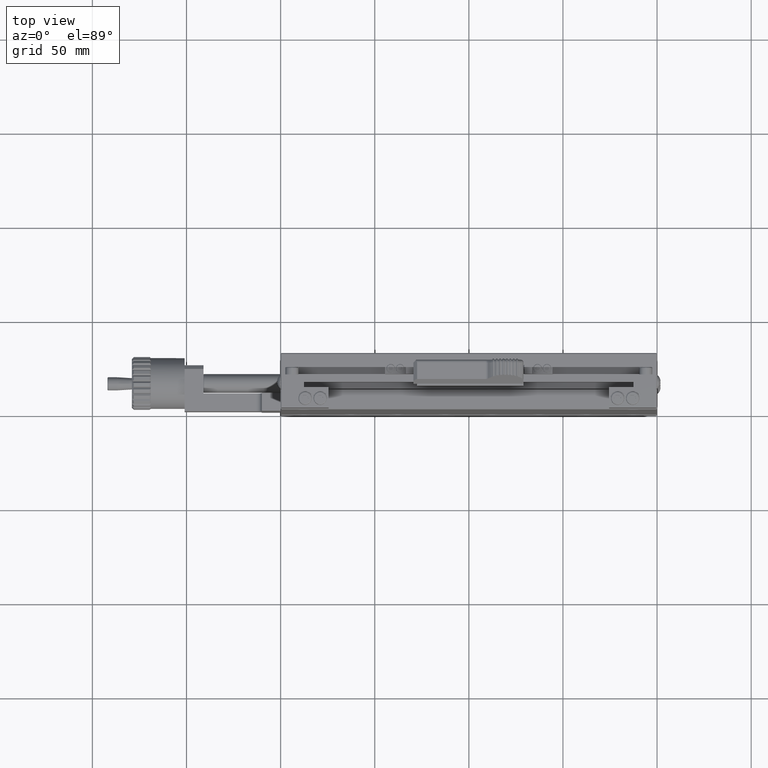
[diagram: clean part render]
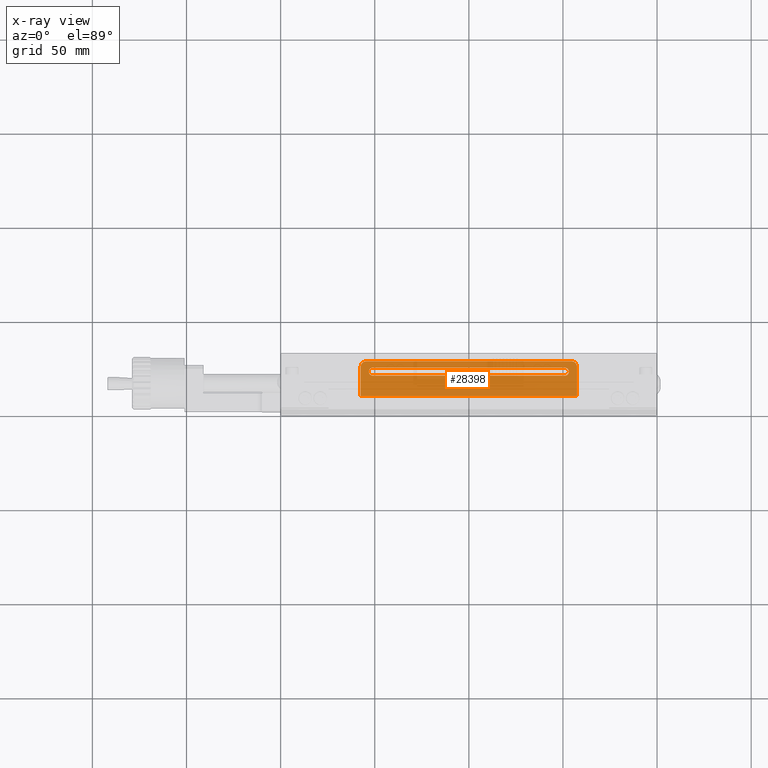
[diagram: x-ray — body ghosted, one internal face saturated and labeled with its STEP entity id]
A machine part, top view, then the same camera in x-ray: the body is ghosted and one INTERNAL B-rep face — a face not visible from any outside direction — is saturated and labeled: STEP entity #28398.
In plain terms, the highlighted planar face has unit normal (0, 0, 1).
Its self-contained STEP definition (entity closure, byte-faithful):
#377 = ORIENTED_EDGE ( 'NONE', *, *, #13184, .T. ) ;
#644 = CARTESIAN_POINT ( 'NONE',  ( -154.5000000000000000, 26.00000000000000355, -100.0000000000000000 ) ) ;
#1204 = DIRECTION ( 'NONE',  ( -1.000000000000000000, -0.000000000000000000, 0.000000000000000000 ) ) ;
#1676 = DIRECTION ( 'NONE',  ( 0.000000000000000000, 0.000000000000000000, 1.000000000000000000 ) ) ;
#4133 = DIRECTION ( 'NONE',  ( -0.000000000000000000, 1.000000000000000000, 0.000000000000000000 ) ) ;
#5482 = EDGE_CURVE ( 'NONE', #14419, #29756, #40237, .T. ) ;
#5702 = FACE_OUTER_BOUND ( 'NONE', #62480, .T. ) ;
#7331 = CARTESIAN_POINT ( 'NONE',  ( -151.0000000000000000, 23.50000000000000000, -100.0000000000000000 ) ) ;
#7411 = CARTESIAN_POINT ( 'NONE',  ( -45.50000000000000000, 29.00000000000000000, -100.0000000000000000 ) ) ;
#8882 = ORIENTED_EDGE ( 'NONE', *, *, #29433, .T. ) ;
#9053 = DIRECTION ( 'NONE',  ( 1.000000000000000000, 0.000000000000000000, 0.000000000000000000 ) ) ;
#9200 = EDGE_CURVE ( 'NONE', #63366, #22633, #56118, .T. ) ;
#10788 = VERTEX_POINT ( 'NONE', #51979 ) ;
#11355 = DIRECTION ( 'NONE',  ( -0.000000000000000000, -0.000000000000000000, -1.000000000000000000 ) ) ;
#11595 = CARTESIAN_POINT ( 'NONE',  ( -154.5000000000000000, 29.00000000000001776, -100.0000000000000000 ) ) ;
#12819 = DIRECTION ( 'NONE',  ( 0.000000000000000000, -1.000000000000000000, -0.000000000000000000 ) ) ;
#13109 = VERTEX_POINT ( 'NONE', #7411 ) ;
#13120 = EDGE_CURVE ( 'NONE', #50360, #18782, #43184, .T. ) ;
#13184 = EDGE_CURVE ( 'NONE', #60562, #50360, #66285, .T. ) ;
#14419 = VERTEX_POINT ( 'NONE', #54871 ) ;
#15545 = VERTEX_POINT ( 'NONE', #58298 ) ;
#17150 = DIRECTION ( 'NONE',  ( 1.000000000000000000, 0.000000000000000000, 0.000000000000000000 ) ) ;
#18755 = EDGE_CURVE ( 'NONE', #22633, #13109, #62313, .T. ) ;
#18782 = VERTEX_POINT ( 'NONE', #61945 ) ;
#19684 = ORIENTED_EDGE ( 'NONE', *, *, #34999, .T. ) ;
#20203 = DIRECTION ( 'NONE',  ( -1.000000000000000000, -0.000000000000000000, 0.000000000000000000 ) ) ;
#20967 = AXIS2_PLACEMENT_3D ( 'NONE', #47921, #1676, #9053 ) ;
#21116 = LINE ( 'NONE', #22457, #52089 ) ;
#21632 = ORIENTED_EDGE ( 'NONE', *, *, #13120, .T. ) ;
#22437 = CARTESIAN_POINT ( 'NONE',  ( -154.5000000000000000, 29.00000000000000000, -100.0000000000000000 ) ) ;
#22457 = CARTESIAN_POINT ( 'NONE',  ( -200.0000000000000000, 10.50000000000000000, -100.0000000000000000 ) ) ;
#22633 = VERTEX_POINT ( 'NONE', #25461 ) ;
#23576 = CARTESIAN_POINT ( 'NONE',  ( -157.5000000000000000, 26.00000000000000355, -100.0000000000000000 ) ) ;
#25461 = CARTESIAN_POINT ( 'NONE',  ( -42.50000000000000711, 26.00000000000000355, -100.0000000000000000 ) ) ;
#25811 = CARTESIAN_POINT ( 'NONE',  ( -45.50000000000000000, 26.00000000000000355, -100.0000000000000000 ) ) ;
#26181 = DIRECTION ( 'NONE',  ( 1.000000000000000000, 0.000000000000000000, 0.000000000000000000 ) ) ;
#26284 = FACE_BOUND ( 'NONE', #63323, .T. ) ;
#27206 = DIRECTION ( 'NONE',  ( 1.000000000000000000, 0.000000000000000000, -0.000000000000000000 ) ) ;
#27918 = DIRECTION ( 'NONE',  ( -0.000000000000000000, -0.000000000000000000, -1.000000000000000000 ) ) ;
#28398 = ADVANCED_FACE ( 'NONE', ( #5702, #26284 ), #46892, .T. ) ;
#28532 = CARTESIAN_POINT ( 'NONE',  ( -154.5000000000000000, 25.64999999999999858, -100.0000000000000000 ) ) ;
#29433 = EDGE_CURVE ( 'NONE', #29756, #15545, #32602, .T. ) ;
#29756 = VERTEX_POINT ( 'NONE', #51132 ) ;
#30328 = LINE ( 'NONE', #40122, #53377 ) ;
#31206 = DIRECTION ( 'NONE',  ( 1.000000000000000000, 0.000000000000000000, 0.000000000000000000 ) ) ;
#32555 = LINE ( 'NONE', #22437, #35124 ) ;
#32602 = LINE ( 'NONE', #28532, #58424 ) ;
#33236 = AXIS2_PLACEMENT_3D ( 'NONE', #25811, #51140, #31206 ) ;
#34838 = CARTESIAN_POINT ( 'NONE',  ( -42.50000000000000711, 26.00000000000000355, -100.0000000000000000 ) ) ;
#34999 = EDGE_CURVE ( 'NONE', #10788, #14419, #30328, .T. ) ;
#35124 = VECTOR ( 'NONE', #62630, 1000.000000000000000 ) ;
#37157 = AXIS2_PLACEMENT_3D ( 'NONE', #47794, #11355, #26181 ) ;
#37565 = VECTOR ( 'NONE', #4133, 1000.000000000000000 ) ;
#40122 = CARTESIAN_POINT ( 'NONE',  ( -154.5000000000000000, 21.35000000000000142, -100.0000000000000000 ) ) ;
#40146 = EDGE_CURVE ( 'NONE', #13109, #60562, #32555, .T. ) ;
#40237 = CIRCLE ( 'NONE', #56441, 2.150000000000012790 ) ;
#41056 = ORIENTED_EDGE ( 'NONE', *, *, #57604, .T. ) ;
#43184 = LINE ( 'NONE', #23576, #47440 ) ;
#43618 = ORIENTED_EDGE ( 'NONE', *, *, #40146, .T. ) ;
#44679 = CIRCLE ( 'NONE', #37157, 2.149999999999999023 ) ;
#45413 = ORIENTED_EDGE ( 'NONE', *, *, #49842, .F. ) ;
#46892 = PLANE ( 'NONE',  #47512 ) ;
#47440 = VECTOR ( 'NONE', #12819, 1000.000000000000000 ) ;
#47512 = AXIS2_PLACEMENT_3D ( 'NONE', #644, #58712, #54640 ) ;
#47794 = CARTESIAN_POINT ( 'NONE',  ( -49.00000000000000000, 23.50000000000000000, -100.0000000000000000 ) ) ;
#47921 = CARTESIAN_POINT ( 'NONE',  ( -154.5000000000000000, 26.00000000000000355, -100.0000000000000000 ) ) ;
#48724 = CARTESIAN_POINT ( 'NONE',  ( -42.50000000000000711, 10.50000000000000000, -100.0000000000000000 ) ) ;
#49842 = EDGE_CURVE ( 'NONE', #63366, #18782, #21116, .T. ) ;
#50360 = VERTEX_POINT ( 'NONE', #52336 ) ;
#51132 = CARTESIAN_POINT ( 'NONE',  ( -151.0000000000000000, 25.64999999999999858, -100.0000000000000000 ) ) ;
#51140 = DIRECTION ( 'NONE',  ( 0.000000000000000000, 0.000000000000000000, 1.000000000000000000 ) ) ;
#51979 = CARTESIAN_POINT ( 'NONE',  ( -49.00000000000000000, 21.35000000000000142, -100.0000000000000000 ) ) ;
#52089 = VECTOR ( 'NONE', #1204, 1000.000000000000000 ) ;
#52336 = CARTESIAN_POINT ( 'NONE',  ( -157.5000000000000000, 26.00000000000000355, -100.0000000000000000 ) ) ;
#53377 = VECTOR ( 'NONE', #20203, 1000.000000000000000 ) ;
#54640 = DIRECTION ( 'NONE',  ( 1.000000000000000000, 0.000000000000000000, -0.000000000000000000 ) ) ;
#54871 = CARTESIAN_POINT ( 'NONE',  ( -151.0000000000000000, 21.35000000000000142, -100.0000000000000000 ) ) ;
#56118 = LINE ( 'NONE', #34838, #37565 ) ;
#56441 = AXIS2_PLACEMENT_3D ( 'NONE', #7331, #27918, #17150 ) ;
#57604 = EDGE_CURVE ( 'NONE', #15545, #10788, #44679, .T. ) ;
#58298 = CARTESIAN_POINT ( 'NONE',  ( -49.00000000000000000, 25.64999999999999858, -100.0000000000000000 ) ) ;
#58424 = VECTOR ( 'NONE', #27206, 1000.000000000000000 ) ;
#58712 = DIRECTION ( 'NONE',  ( 0.000000000000000000, 0.000000000000000000, 1.000000000000000000 ) ) ;
#59510 = ORIENTED_EDGE ( 'NONE', *, *, #18755, .T. ) ;
#59666 = ORIENTED_EDGE ( 'NONE', *, *, #5482, .T. ) ;
#60562 = VERTEX_POINT ( 'NONE', #11595 ) ;
#61945 = CARTESIAN_POINT ( 'NONE',  ( -157.5000000000000000, 10.50000000000000000, -100.0000000000000000 ) ) ;
#62313 = CIRCLE ( 'NONE', #33236, 3.000000000000002665 ) ;
#62480 = EDGE_LOOP ( 'NONE', ( #43618, #377, #21632, #45413, #64663, #59510 ) ) ;
#62630 = DIRECTION ( 'NONE',  ( -1.000000000000000000, -0.000000000000000000, 0.000000000000000000 ) ) ;
#63323 = EDGE_LOOP ( 'NONE', ( #19684, #59666, #8882, #41056 ) ) ;
#63366 = VERTEX_POINT ( 'NONE', #48724 ) ;
#64663 = ORIENTED_EDGE ( 'NONE', *, *, #9200, .T. ) ;
#66285 = CIRCLE ( 'NONE', #20967, 3.000000000000030198 ) ;